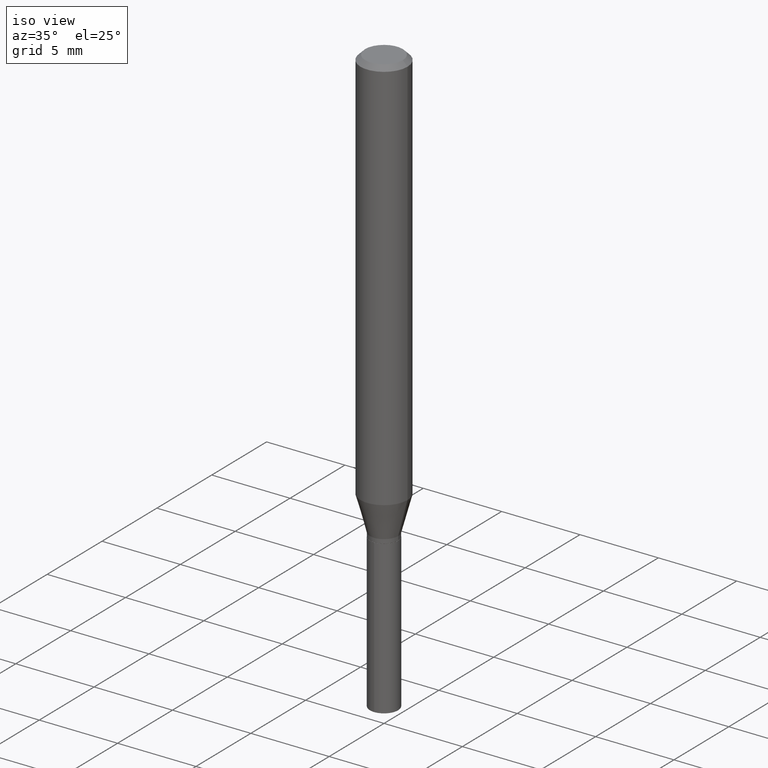
[diagram: clean part render]
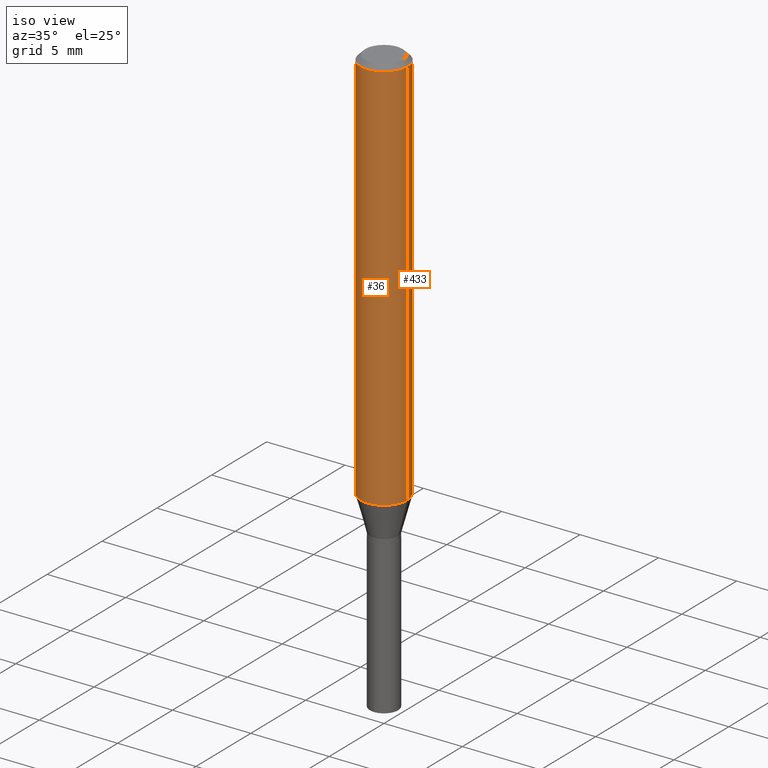
[diagram: same view with one multi-face feature highlighted, each face labeled with its STEP entity id]
A machine part, iso view. The highlighted faces form ONE feature: a constant-radius fillet chain: 2 tangent blend faces with common blend radius 1.4999 mm. The faces share edges in the B-rep.
Their STEP definitions:
[1] entity #36 (Cylinder):
#13 = DIRECTION ( 'NONE',  ( 1.000000000000000000, -6.982962677686266711E-15, 4.876176775795935793E-29 ) ) ;
#26 = ORIENTED_EDGE ( 'NONE', *, *, #244, .T. ) ;
#36 = ADVANCED_FACE ( 'NONE', ( #91 ), #219, .T. ) ;
#64 = VERTEX_POINT ( 'NONE', #324 ) ;
#72 = DIRECTION ( 'NONE',  ( -2.445468806185136597E-29, 3.491481338843145583E-15, 1.000000000000000000 ) ) ;
#91 = FACE_OUTER_BOUND ( 'NONE', #407, .T. ) ;
#109 = CARTESIAN_POINT ( 'NONE',  ( 0.05905000000000011628, -3.889243465583765977E-15, -0.9958236009413741208 ) ) ;
#138 = VERTEX_POINT ( 'NONE', #109 ) ;
#140 = AXIS2_PLACEMENT_3D ( 'NONE', #483, #157, #294 ) ;
#157 = DIRECTION ( 'NONE',  ( -2.445468806185136597E-29, 3.491481338843145583E-15, 1.000000000000000000 ) ) ;
#174 = EDGE_CURVE ( 'NONE', #138, #64, #345, .T. ) ;
#180 = ORIENTED_EDGE ( 'NONE', *, *, #281, .F. ) ;
#187 = CARTESIAN_POINT ( 'NONE',  ( 2.888098660104664204E-31, -4.123439461173780263E-17, -0.01181000000000007218 ) ) ;
#216 = CARTESIAN_POINT ( 'NONE',  ( 0.000000000000000000, 0.000000000000000000, 0.000000000000000000 ) ) ;
#217 = VERTEX_POINT ( 'NONE', #336 ) ;
#219 = CYLINDRICAL_SURFACE ( 'NONE', #343, 0.05905000000000006077 ) ;
#227 = EDGE_CURVE ( 'NONE', #217, #64, #488, .T. ) ;
#244 = EDGE_CURVE ( 'NONE', #325, #138, #354, .T. ) ;
#265 = CARTESIAN_POINT ( 'NONE',  ( 0.05905000000000006077, -4.123439461173744764E-16, 2.879382386107503023E-30 ) ) ;
#281 = EDGE_CURVE ( 'NONE', #325, #217, #349, .T. ) ;
#291 = DIRECTION ( 'NONE',  ( -2.445468806185136597E-29, 3.491481338843145583E-15, 1.000000000000000000 ) ) ;
#294 = DIRECTION ( 'NONE',  ( 1.000000000000000000, -6.982962677686266711E-15, 0.000000000000000000 ) ) ;
#302 = ORIENTED_EDGE ( 'NONE', *, *, #227, .F. ) ;
#308 = VECTOR ( 'NONE', #347, 39.37007874015748143 ) ;
#309 = CARTESIAN_POINT ( 'NONE',  ( -0.05905000000000011628, -3.057324034000050775E-15, -0.9958236009413741208 ) ) ;
#321 = AXIS2_PLACEMENT_3D ( 'NONE', #187, #72, #378 ) ;
#324 = CARTESIAN_POINT ( 'NONE',  ( 0.05904999999999999832, -4.535783407291118600E-16, -0.01181000000000007218 ) ) ;
#325 = VERTEX_POINT ( 'NONE', #309 ) ;
#336 = CARTESIAN_POINT ( 'NONE',  ( -0.05904999999999999832, -1.339491471572724111E-15, -0.01181000000000007218 ) ) ;
#343 = AXIS2_PLACEMENT_3D ( 'NONE', #216, #291, #13 ) ;
#345 = LINE ( 'NONE', #265, #456 ) ;
#347 = DIRECTION ( 'NONE',  ( -2.445468806185136877E-29, 3.491481338843145188E-15, 1.000000000000000000 ) ) ;
#349 = LINE ( 'NONE', #382, #308 ) ;
#354 = CIRCLE ( 'NONE', #140, 0.05905000000000011628 ) ;
#378 = DIRECTION ( 'NONE',  ( 1.000000000000000000, -6.982962677686266711E-15, 0.000000000000000000 ) ) ;
#382 = CARTESIAN_POINT ( 'NONE',  ( -0.05905000000000006077, 4.195754854663395916E-16, -2.904631170795524694E-30 ) ) ;
#403 = ORIENTED_EDGE ( 'NONE', *, *, #174, .T. ) ;
#407 = EDGE_LOOP ( 'NONE', ( #180, #26, #403, #302 ) ) ;
#440 = DIRECTION ( 'NONE',  ( -2.445468806185136877E-29, 3.491481338843145188E-15, 1.000000000000000000 ) ) ;
#456 = VECTOR ( 'NONE', #440, 39.37007874015748143 ) ;
#483 = CARTESIAN_POINT ( 'NONE',  ( 2.435255552565086005E-29, -3.476899519466391057E-15, -0.9958236009413741208 ) ) ;
#488 = CIRCLE ( 'NONE', #321, 0.05904999999999999832 ) ;
[2] entity #433 (Cylinder):
#12 = ORIENTED_EDGE ( 'NONE', *, *, #122, .F. ) ;
#64 = VERTEX_POINT ( 'NONE', #324 ) ;
#68 = CARTESIAN_POINT ( 'NONE',  ( 2.888098660104664204E-31, -4.123439461173780263E-17, -0.01181000000000007218 ) ) ;
#86 = CARTESIAN_POINT ( 'NONE',  ( 0.000000000000000000, 0.000000000000000000, 0.000000000000000000 ) ) ;
#88 = DIRECTION ( 'NONE',  ( 1.000000000000000000, -6.982962677686266711E-15, 4.876176775795935793E-29 ) ) ;
#94 = EDGE_LOOP ( 'NONE', ( #98, #367, #12, #335 ) ) ;
#98 = ORIENTED_EDGE ( 'NONE', *, *, #198, .T. ) ;
#109 = CARTESIAN_POINT ( 'NONE',  ( 0.05905000000000011628, -3.889243465583765977E-15, -0.9958236009413741208 ) ) ;
#122 = EDGE_CURVE ( 'NONE', #64, #217, #266, .T. ) ;
#124 = CYLINDRICAL_SURFACE ( 'NONE', #204, 0.05905000000000006077 ) ;
#133 = AXIS2_PLACEMENT_3D ( 'NONE', #158, #156, #301 ) ;
#138 = VERTEX_POINT ( 'NONE', #109 ) ;
#156 = DIRECTION ( 'NONE',  ( -2.445468806185136597E-29, 3.491481338843145583E-15, 1.000000000000000000 ) ) ;
#158 = CARTESIAN_POINT ( 'NONE',  ( 2.435255552565086005E-29, -3.476899519466391057E-15, -0.9958236009413741208 ) ) ;
#173 = CIRCLE ( 'NONE', #133, 0.05905000000000011628 ) ;
#174 = EDGE_CURVE ( 'NONE', #138, #64, #345, .T. ) ;
#198 = EDGE_CURVE ( 'NONE', #138, #325, #173, .T. ) ;
#204 = AXIS2_PLACEMENT_3D ( 'NONE', #86, #316, #88 ) ;
#217 = VERTEX_POINT ( 'NONE', #336 ) ;
#265 = CARTESIAN_POINT ( 'NONE',  ( 0.05905000000000006077, -4.123439461173744764E-16, 2.879382386107503023E-30 ) ) ;
#266 = CIRCLE ( 'NONE', #340, 0.05904999999999999832 ) ;
#281 = EDGE_CURVE ( 'NONE', #325, #217, #349, .T. ) ;
#301 = DIRECTION ( 'NONE',  ( 1.000000000000000000, -6.982962677686266711E-15, 0.000000000000000000 ) ) ;
#308 = VECTOR ( 'NONE', #347, 39.37007874015748143 ) ;
#309 = CARTESIAN_POINT ( 'NONE',  ( -0.05905000000000011628, -3.057324034000050775E-15, -0.9958236009413741208 ) ) ;
#316 = DIRECTION ( 'NONE',  ( -2.445468806185136597E-29, 3.491481338843145583E-15, 1.000000000000000000 ) ) ;
#324 = CARTESIAN_POINT ( 'NONE',  ( 0.05904999999999999832, -4.535783407291118600E-16, -0.01181000000000007218 ) ) ;
#325 = VERTEX_POINT ( 'NONE', #309 ) ;
#335 = ORIENTED_EDGE ( 'NONE', *, *, #174, .F. ) ;
#336 = CARTESIAN_POINT ( 'NONE',  ( -0.05904999999999999832, -1.339491471572724111E-15, -0.01181000000000007218 ) ) ;
#340 = AXIS2_PLACEMENT_3D ( 'NONE', #68, #476, #346 ) ;
#345 = LINE ( 'NONE', #265, #456 ) ;
#346 = DIRECTION ( 'NONE',  ( 1.000000000000000000, -6.982962677686266711E-15, 0.000000000000000000 ) ) ;
#347 = DIRECTION ( 'NONE',  ( -2.445468806185136877E-29, 3.491481338843145188E-15, 1.000000000000000000 ) ) ;
#349 = LINE ( 'NONE', #382, #308 ) ;
#367 = ORIENTED_EDGE ( 'NONE', *, *, #281, .T. ) ;
#382 = CARTESIAN_POINT ( 'NONE',  ( -0.05905000000000006077, 4.195754854663395916E-16, -2.904631170795524694E-30 ) ) ;
#421 = FACE_OUTER_BOUND ( 'NONE', #94, .T. ) ;
#433 = ADVANCED_FACE ( 'NONE', ( #421 ), #124, .T. ) ;
#440 = DIRECTION ( 'NONE',  ( -2.445468806185136877E-29, 3.491481338843145188E-15, 1.000000000000000000 ) ) ;
#456 = VECTOR ( 'NONE', #440, 39.37007874015748143 ) ;
#476 = DIRECTION ( 'NONE',  ( -2.445468806185136597E-29, 3.491481338843145583E-15, 1.000000000000000000 ) ) ;